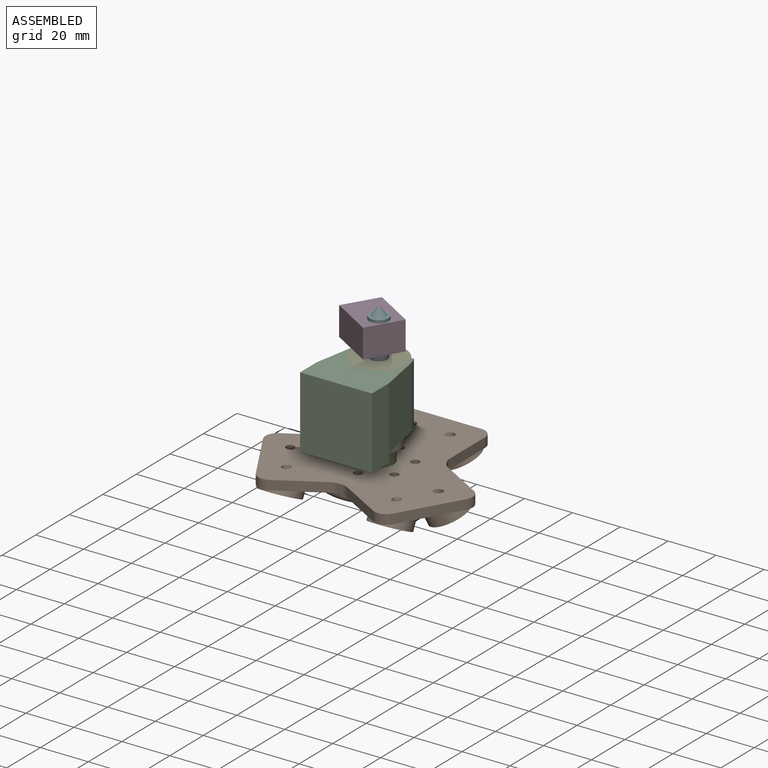
[diagram: assembled view]
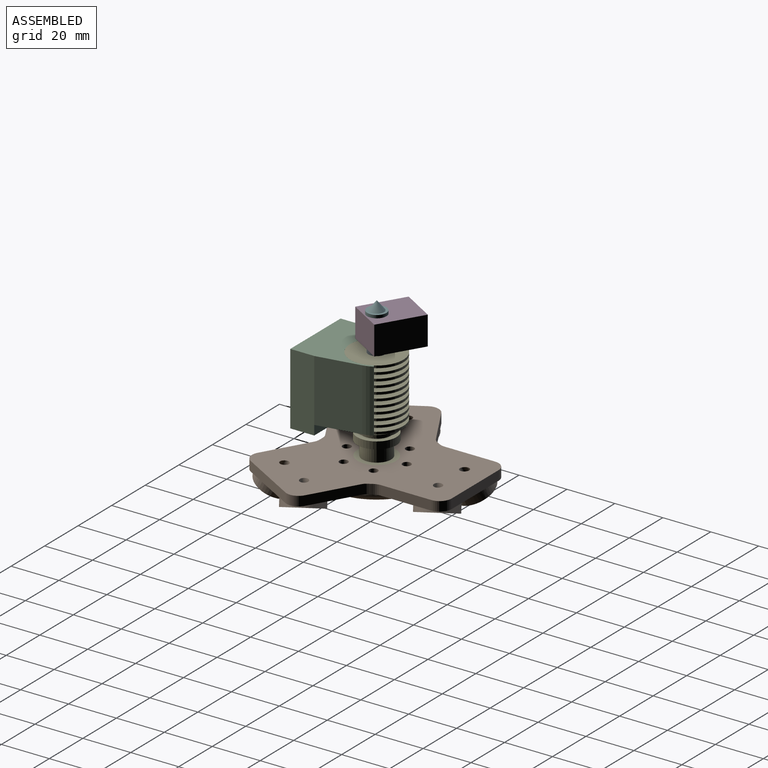
[diagram: assembled view, second angle]
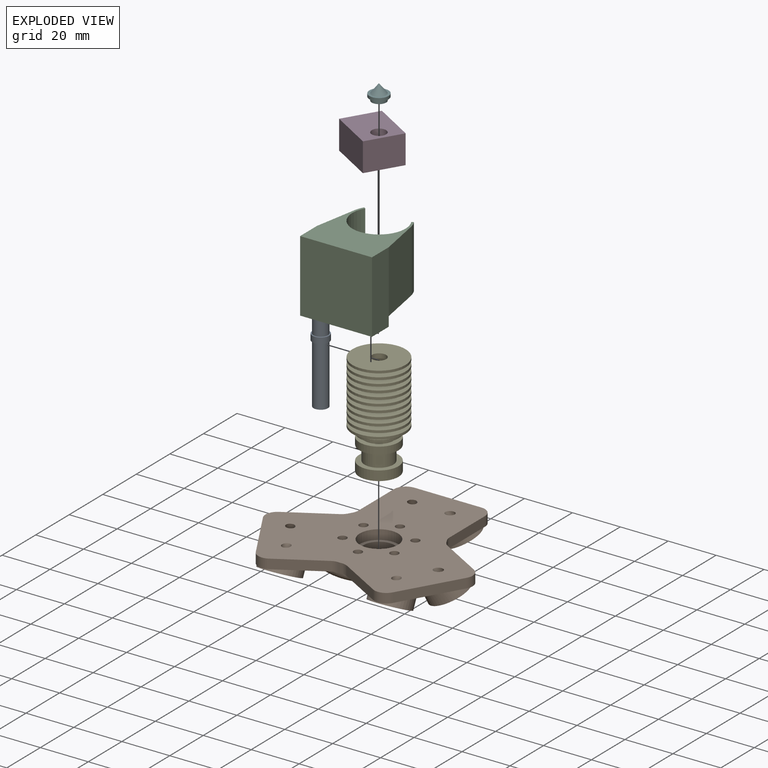
[diagram: exploded view]
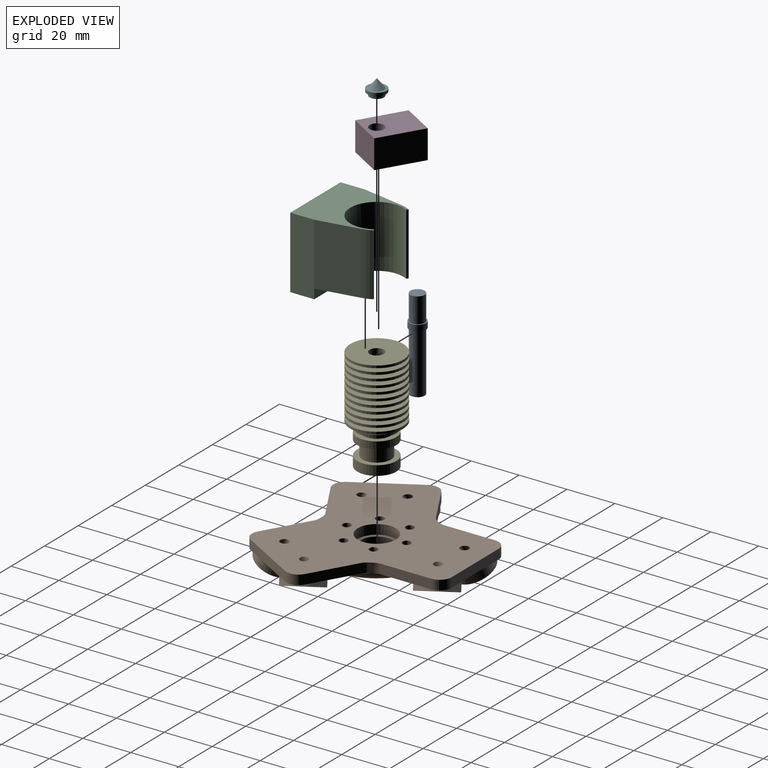
[diagram: exploded view, second angle]
ASSEMBLY  parts=6 mates=5
PART A: 7 faces, bbox 7x7x38 mm
  f0: cylinder r=3mm len=10.5mm, axis (0,0,-1), area 197.9mm2, adj f1,f3
  f1: plane 6x6mm, normal (0,0,1), area 28.3mm2, adj f0
  f2: cylinder r=3.5mm len=7mm, axis (0,0,-1), area 55mm2, adj f3,f4
  f3: plane 7x7mm, normal (0,0,1), area 10.2mm2, adj f0,f2
  f4: plane 7x7mm, normal (0,0,-1), area 10.2mm2, adj f2,f6
  f5: plane 6x6mm, normal (0,0,-1), area 28.3mm2, adj f6
  f6: cylinder r=3mm len=25mm, axis (0,0,-1), area 471.2mm2, adj f4,f5
PART B: 69 faces, bbox 88x77.9x16.6 mm
  f0: cylinder r=23.25mm len=4mm, axis (0,0,-1), area 6mm2, adj f22,f49,f50,f68
  f1: cylinder r=23.25mm len=4mm, axis (0,0,-1), area 6mm2, adj f22,f46,f51,f68
  f2: plane 39.8x29.07mm, normal (0,0,-1), area 305.8mm2, adj f12,f13,f21,f38,f50,f51,f54,f55
  f3: plane 47.74x44.09mm, normal (0,0,-1), area 305.8mm2, adj f8,f9,f10,f26,f48,f49,f52,f53
  f4: plane 47.74x44.09mm, normal (0,0,-1), area 305.8mm2, adj f5,f6,f7,f28,f36,f46,f47,f56
  f5: plane 18.31x10.57mm, normal (-0.5,0.87,0), area 84.6mm2, adj f4,f22,f46,f56
  f6: plane 24.25x14mm, normal (-0.87,-0.5,0), area 112mm2, adj f4,f22,f56,f57
  f7: plane 18.31x10.57mm, normal (0.5,-0.87,0), area 84.6mm2, adj f4,f22,f47,f57
  f8: plane 18.31x10.57mm, normal (-0.5,-0.87,0), area 84.6mm2, adj f3,f22,f48,f52
  f9: plane 24.25x14mm, normal (0.87,-0.5,0), area 112mm2, adj f3,f22,f52,f53
  f10: plane 18.31x10.57mm, normal (0.5,0.87,0), area 84.6mm2, adj f3,f22,f49,f53
  f11: cylinder r=23.25mm len=4mm, axis (0,0,-1), area 6mm2, adj f22,f47,f48,f68
  f12: plane 21.14x4mm, normal (1,0,0), area 84.6mm2, adj f2,f22,f50,f55
  f13: plane 28x4mm, normal (0,1,0), area 112mm2, adj f2,f22,f54,f55
  f14: cylinder r=8mm len=16mm, axis (0,0,-1), area 201.1mm2, adj f22,f25
  f15: cylinder r=1.75mm len=7mm, axis (0,0,-1), area 77mm2, adj f22,f24
  f16: cylinder r=1.75mm len=7mm, axis (0,0,-1), area 77mm2, adj f22,f24
  f17: cylinder r=1.75mm len=7mm, axis (0,0,-1), area 77mm2, adj f22,f24
  f18: cylinder r=1.75mm len=7mm, axis (0,0,-1), area 77mm2, adj f22,f24
  f19: cylinder r=1.75mm len=7mm, axis (0,0,-1), area 77mm2, adj f22,f24
  f20: cylinder r=1.75mm len=7mm, axis (0,0,-1), area 77mm2, adj f22,f24
  f21: plane 21.14x4mm, normal (-1,0,0), area 84.6mm2, adj f2,f22,f51,f54
  f22: plane 86.77x76.53mm, normal (0,0,1), area 3708.7mm2, adj f0,f1,f5,f6,f7,f8,f9,f10
  f23: cylinder r=6.5mm len=13mm, axis (0,0,1), area 122.5mm2, adj f24,f25
  f24: plane 40.5x40.5mm, normal (0,0,-1), area 1097.8mm2, adj f15,f16,f17,f18,f19,f20,f23,f68
  f25: plane 16x16mm, normal (0,0,1), area 68.3mm2, adj f14,f23
  f26: cylinder r=8.25mm len=18.69mm, axis (0,0.42,0.91), area 252.4mm2, adj f3,f27
  f27: plane 16.5x14.95mm, normal (0,-0.42,-0.91), area 37.1mm2, adj f26,f32
  f28: cylinder r=8.25mm len=18.69mm, axis (0,0.42,0.91), area 252.4mm2, adj f4,f29
  f29: plane 16.5x14.95mm, normal (0,-0.42,-0.91), area 37.1mm2, adj f28,f30
  f30: cylinder r=7.5mm len=15.71mm, axis (0,0.42,0.91), area 235.6mm2, adj f29,f31
  f31: plane 15x13.59mm, normal (0,-0.42,-0.91), area 167.1mm2, adj f30,f34
  f32: cylinder r=7.5mm len=15.71mm, axis (0,0.42,0.91), area 235.6mm2, adj f27,f33
  f33: plane 15x13.59mm, normal (0,-0.42,-0.91), area 167.1mm2, adj f32,f35
  f34: cylinder r=1.75mm len=6.22mm, axis (0,-0.42,-0.91), area 48.8mm2, adj f22,f31
  f35: cylinder r=1.75mm len=6.22mm, axis (0,-0.42,-0.91), area 48.8mm2, adj f22,f33
  f36: cylinder r=8.25mm len=18.59mm, axis (0.37,-0.21,0.91), area 258.7mm2, adj f4,f37
  f37: plane 16.13x15.36mm, normal (-0.37,0.21,-0.91), area 37.1mm2, adj f36,f42
  f38: cylinder r=8.25mm len=18.59mm, axis (0.37,-0.21,0.91), area 258.7mm2, adj f2,f39
  f39: plane 16.13x15.36mm, normal (-0.37,0.21,-0.91), area 37.1mm2, adj f38,f40
  f40: cylinder r=7.5mm len=15.79mm, axis (0.37,-0.21,0.91), area 235.6mm2, adj f39,f41
  f41: plane 14.66x13.96mm, normal (-0.37,0.21,-0.91), area 167.1mm2, adj f40,f44
  f42: cylinder r=7.5mm len=15.79mm, axis (0.37,-0.21,0.91), area 235.6mm2, adj f37,f43
  f43: plane 14.66x13.96mm, normal (-0.37,0.21,-0.91), area 167.1mm2, adj f42,f45
  f44: cylinder r=1.75mm len=6.23mm, axis (-0.37,0.21,-0.91), area 48.5mm2, adj f22,f41
  f45: cylinder r=1.75mm len=6.23mm, axis (-0.37,0.21,-0.91), area 48.5mm2, adj f22,f43
  f46: cylinder r=5mm len=4mm, axis (0,0,-1), area 11.1mm2, adj f1,f4,f5,f22
  f47: cylinder r=5mm len=4mm, axis (0,0,-1), area 11.1mm2, adj f4,f7,f11,f22
  f48: cylinder r=5mm len=4mm, axis (0,0,-1), area 11.1mm2, adj f3,f8,f11,f22
  f49: cylinder r=5mm len=4mm, axis (0,0,-1), area 11.1mm2, adj f0,f3,f10,f22
  f50: cylinder r=5mm len=4mm, axis (0,0,-1), area 11.1mm2, adj f0,f2,f12,f22
  f51: cylinder r=5mm len=4mm, axis (0,0,-1), area 11.1mm2, adj f1,f2,f21,f22
  f52: cylinder r=5mm len=6.83mm, axis (0,0,1), area 31.4mm2, adj f3,f8,f9,f22
  f53: cylinder r=5mm len=6.83mm, axis (0,0,1), area 31.4mm2, adj f3,f9,f10,f22
  f54: cylinder r=5mm len=5mm, axis (0,0,-1), area 31.4mm2, adj f2,f13,f21,f22
  f55: cylinder r=5mm len=5mm, axis (0,0,1), area 31.4mm2, adj f2,f12,f13,f22
  f56: cylinder r=5mm len=6.83mm, axis (0,0,1), area 31.4mm2, adj f4,f5,f6,f22
  f57: cylinder r=5mm len=6.83mm, axis (0,0,-1), area 31.4mm2, adj f4,f6,f7,f22
  f58: cylinder r=8.25mm len=18.59mm, axis (-0.37,-0.21,0.91), area 259.2mm2, adj f3,f59
  f59: plane 16.13x15.36mm, normal (0.37,0.21,-0.91), area 37.1mm2, adj f58,f64
  f60: cylinder r=8.25mm len=18.59mm, axis (-0.37,-0.21,0.91), area 259.2mm2, adj f2,f61
  f61: plane 16.13x15.36mm, normal (0.37,0.21,-0.91), area 37.1mm2, adj f60,f62
  f62: cylinder r=7.5mm len=15.79mm, axis (-0.37,-0.21,0.91), area 235.6mm2, adj f61,f63
  f63: plane 14.66x13.96mm, normal (0.37,0.21,-0.91), area 167.1mm2, adj f62,f67
  f64: cylinder r=7.5mm len=15.79mm, axis (-0.37,-0.21,0.91), area 235.6mm2, adj f59,f65
  f65: plane 14.66x13.96mm, normal (0.37,0.21,-0.91), area 167.1mm2, adj f64,f66
  f66: cylinder r=1.75mm len=6.23mm, axis (0.37,0.21,-0.91), area 48.5mm2, adj f22,f65
  f67: cylinder r=1.75mm len=6.23mm, axis (0.37,0.21,-0.91), area 48.5mm2, adj f22,f63
  f68: torus R=20.25mm, axis (0,0,1), area 656.1mm2, adj f0,f1,f2,f3,f4,f11,f24
PART C: 14 faces, bbox 30x31.6x30 mm
  f0: plane 26x17.73mm, normal (0.98,0.18,0), area 468.3mm2, adj f1,f7,f8,f12
  f1: cylinder r=12mm len=26mm, axis (0,0,1), area 107.8mm2, adj f0,f2,f7,f8
  f2: plane 26x0.78mm, normal (-0.5,0.87,0), area 23.4mm2, adj f1,f3,f7,f8
  f3: cylinder r=11.1mm len=26mm, axis (0,0,1), area 1208.9mm2, adj f2,f4,f7,f8
  f4: plane 26x0.78mm, normal (0.5,0.87,0), area 23.4mm2, adj f3,f5,f7,f8
  f5: cylinder r=12mm len=26mm, axis (0,0,1), area 107.8mm2, adj f4,f6,f7,f8
  f6: plane 26x17.73mm, normal (-0.98,0.18,0), area 468.3mm2, adj f5,f7,f8,f10
  f7: plane 30x21.6mm, normal (0,0,-1), area 241.8mm2, adj f0,f1,f2,f3,f4,f5,f6,f9
  f8: plane 31.6x30mm, normal (0,0,1), area 541.8mm2, adj f0,f1,f2,f3,f4,f5,f6,f10
  f9: plane 30x4mm, normal (0,1,0), area 120mm2, adj f7,f10,f12,f13
  f10: plane 30x10mm, normal (-1,0,0), area 300mm2, adj f6,f8,f9,f11,f13
  f11: plane 30x30mm, normal (0,-1,0), area 900mm2, adj f8,f10,f12,f13
  f12: plane 30x10mm, normal (1,0,0), area 300mm2, adj f0,f8,f9,f11,f13
  f13: plane 30x10mm, normal (0,0,-1), area 300mm2, adj f9,f10,f11,f12
PART D: 7 faces, bbox 16x20x12 mm
  f0: plane 16x12mm, normal (0,1,0), area 192mm2, adj f1,f3,f5,f6
  f1: plane 20x12mm, normal (-1,0,0), area 240mm2, adj f0,f2,f5,f6
  f2: plane 16x12mm, normal (0,-1,0), area 192mm2, adj f1,f3,f5,f6
  f3: plane 20x12mm, normal (1,0,0), area 240mm2, adj f0,f2,f5,f6
  f4: cylinder r=3mm len=12mm, axis (0,0,-1), area 226.2mm2, adj f5,f6
  f5: plane 20x16mm, normal (0,0,1), area 291.7mm2, adj f0,f1,f2,f3,f4
  f6: plane 20x16mm, normal (0,0,-1), area 291.7mm2, adj f0,f1,f2,f3,f4
PART E: 56 faces, bbox 22.2x22.2x43 mm
  f0: cylinder r=6mm len=12mm, axis (0,0,-1), area 56.5mm2, adj f52,f54
  f1: cylinder r=6mm len=12mm, axis (0,0,-1), area 56.5mm2, adj f49,f53
  f2: cylinder r=6mm len=12mm, axis (0,0,-1), area 56.5mm2, adj f46,f50
  f3: cylinder r=6mm len=12mm, axis (0,0,-1), area 56.5mm2, adj f43,f47
  f4: cylinder r=6mm len=12mm, axis (0,0,-1), area 56.5mm2, adj f40,f44
  f5: cylinder r=6mm len=12mm, axis (0,0,-1), area 56.5mm2, adj f37,f41
  f6: cylinder r=6mm len=12mm, axis (0,0,-1), area 56.5mm2, adj f34,f38
  f7: cylinder r=6mm len=12mm, axis (0,0,-1), area 56.5mm2, adj f31,f35
  f8: cylinder r=6mm len=12mm, axis (0,0,-1), area 56.5mm2, adj f28,f32
  f9: cylinder r=6mm len=12mm, axis (0,0,-1), area 56.5mm2, adj f25,f29
  f10: cylinder r=6mm len=12mm, axis (0,0,-1), area 56.5mm2, adj f22,f26
  f11: cylinder r=6mm len=12mm, axis (0,0,-1), area 56.5mm2, adj f19,f23
  f12: cylinder r=3mm len=43mm, axis (0,0,-1), area 810.5mm2, adj f14,f15
  f13: cylinder r=6mm len=12mm, axis (0,0,-1), area 226.2mm2, adj f16,f20
  f14: plane 22.2x22.2mm, normal (0,0,1), area 358.8mm2, adj f12,f55
  f15: plane 16.34x16.34mm, normal (0,0,-1), area 181.4mm2, adj f12,f17
  f16: plane 16.34x16.34mm, normal (0,0,1), area 96.6mm2, adj f13,f17
  f17: cylinder r=8.17mm len=16.34mm, axis (0,0,-1), area 205.3mm2, adj f15,f16
  f18: cylinder r=8.17mm len=16.34mm, axis (0,0,-1), area 154mm2, adj f19,f20
  f19: plane 16.34x16.34mm, normal (0,0,1), area 96.6mm2, adj f11,f18
  f20: plane 16.34x16.34mm, normal (0,0,-1), area 96.6mm2, adj f13,f18
  f21: cylinder r=8.17mm len=16.34mm, axis (0,0,-1), area 51.3mm2, adj f22,f23
  f22: plane 16.34x16.34mm, normal (0,0,1), area 96.6mm2, adj f10,f21
  f23: plane 16.34x16.34mm, normal (0,0,-1), area 96.6mm2, adj f11,f21
  f24: cylinder r=11.1mm len=22.2mm, axis (0,0,-1), area 69.7mm2, adj f25,f26
  f25: plane 22.2x22.2mm, normal (0,0,1), area 274mm2, adj f9,f24
  f26: plane 22.2x22.2mm, normal (0,0,-1), area 274mm2, adj f10,f24
  f27: cylinder r=11.1mm len=22.2mm, axis (0,0,-1), area 69.7mm2, adj f28,f29
  f28: plane 22.2x22.2mm, normal (0,0,1), area 274mm2, adj f8,f27
  f29: plane 22.2x22.2mm, normal (0,0,-1), area 274mm2, adj f9,f27
  f30: cylinder r=11.1mm len=22.2mm, axis (0,0,-1), area 69.7mm2, adj f31,f32
  f31: plane 22.2x22.2mm, normal (0,0,1), area 274mm2, adj f7,f30
  f32: plane 22.2x22.2mm, normal (0,0,-1), area 274mm2, adj f8,f30
  f33: cylinder r=11.1mm len=22.2mm, axis (0,0,-1), area 69.7mm2, adj f34,f35
  f34: plane 22.2x22.2mm, normal (0,0,1), area 274mm2, adj f6,f33
  f35: plane 22.2x22.2mm, normal (0,0,-1), area 274mm2, adj f7,f33
  f36: cylinder r=11.1mm len=22.2mm, axis (0,0,-1), area 69.7mm2, adj f37,f38
  f37: plane 22.2x22.2mm, normal (0,0,1), area 274mm2, adj f5,f36
  f38: plane 22.2x22.2mm, normal (0,0,-1), area 274mm2, adj f6,f36
  f39: cylinder r=11.1mm len=22.2mm, axis (0,0,-1), area 69.7mm2, adj f40,f41
  f40: plane 22.2x22.2mm, normal (0,0,1), area 274mm2, adj f4,f39
  f41: plane 22.2x22.2mm, normal (0,0,-1), area 274mm2, adj f5,f39
  f42: cylinder r=11.1mm len=22.2mm, axis (0,0,-1), area 69.7mm2, adj f43,f44
  f43: plane 22.2x22.2mm, normal (0,0,1), area 274mm2, adj f3,f42
  f44: plane 22.2x22.2mm, normal (0,0,-1), area 274mm2, adj f4,f42
  f45: cylinder r=11.1mm len=22.2mm, axis (0,0,-1), area 69.7mm2, adj f46,f47
  f46: plane 22.2x22.2mm, normal (0,0,1), area 274mm2, adj f2,f45
  f47: plane 22.2x22.2mm, normal (0,0,-1), area 274mm2, adj f3,f45
  f48: cylinder r=11.1mm len=22.2mm, axis (0,0,-1), area 69.7mm2, adj f49,f50
  f49: plane 22.2x22.2mm, normal (0,0,1), area 274mm2, adj f1,f48
  f50: plane 22.2x22.2mm, normal (0,0,-1), area 274mm2, adj f2,f48
  f51: cylinder r=11.1mm len=22.2mm, axis (0,0,-1), area 69.7mm2, adj f52,f53
  f52: plane 22.2x22.2mm, normal (0,0,1), area 274mm2, adj f0,f51
  f53: plane 22.2x22.2mm, normal (0,0,-1), area 274mm2, adj f1,f51
  f54: plane 22.2x22.2mm, normal (0,0,-1), area 274mm2, adj f0,f55
  f55: cylinder r=11.1mm len=22.2mm, axis (0,0,-1), area 69.7mm2, adj f14,f54
PART F: 6 faces, bbox 8x8x6.5 mm
  f0: cone r=3mm half-angle=38.7deg, axis (0,0,-1), area 45.3mm2, adj f1
  f1: plane 8x8mm, normal (0,0,1), area 22mm2, adj f0,f2
  f2: cylinder r=4mm len=8mm, axis (0,0,1), area 31.4mm2, adj f1,f3
  f3: plane 8x8mm, normal (0,0,-1), area 22mm2, adj f2,f4
  f4: cylinder r=3mm len=6mm, axis (0,0,1), area 28.3mm2, adj f3,f5
  f5: plane 6x6mm, normal (0,0,-1), area 28.3mm2, adj f4
PLACE A t=(-28.97,20.41,31.64)mm
PLACE B t=(-28.97,20.41,31.64)mm
PLACE C t=(-28.97,20.41,31.64)mm
PLACE D rot(axis=(0,0,1),59deg) t=(-28.97,20.41,31.64)mm
PLACE E t=(-28.97,20.41,31.64)mm
PLACE F t=(-28.97,20.41,31.64)mm
MATE revolute E.f0 <-> C.f1  axis (0,0,1) through (-28.97,20.41,74.64)mm
MATE revolute F.f2 <-> A.f0  axis (0,0,-1) through (-28.97,20.41,87.64)mm
MATE revolute A.f0 <-> D.f4  axis (0,0,1) through (-28.97,20.41,77.14)mm
MATE revolute E.f0 <-> A.f0  axis (0,0,1) through (-28.97,20.41,74.64)mm
MATE revolute E.f0 <-> B.f0  axis (0,0,-1) through (-28.97,20.41,31.64)mm
